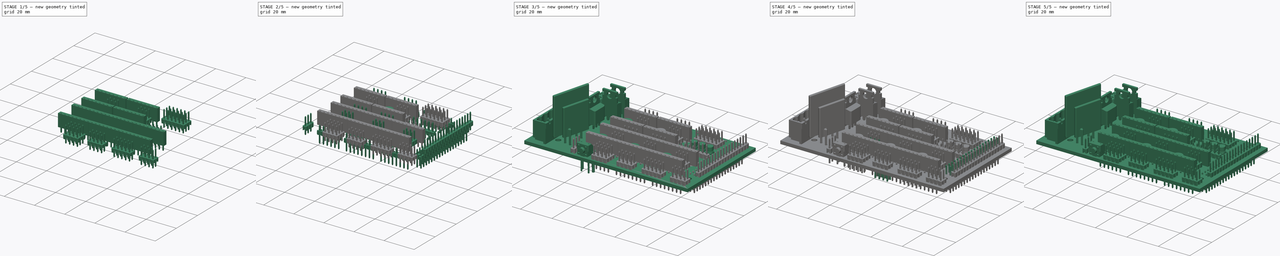
[diagram: build sequence overview — one tinted view per stage of 5, left to right]
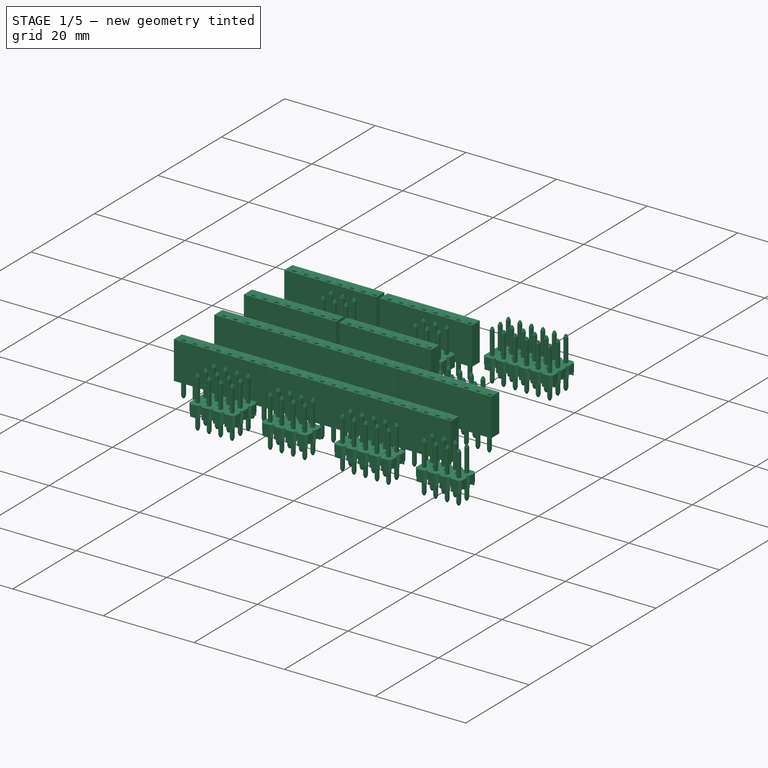
[diagram: stage 1 of 5 — iso view after this stage's code; geometry added in this stage tinted green]
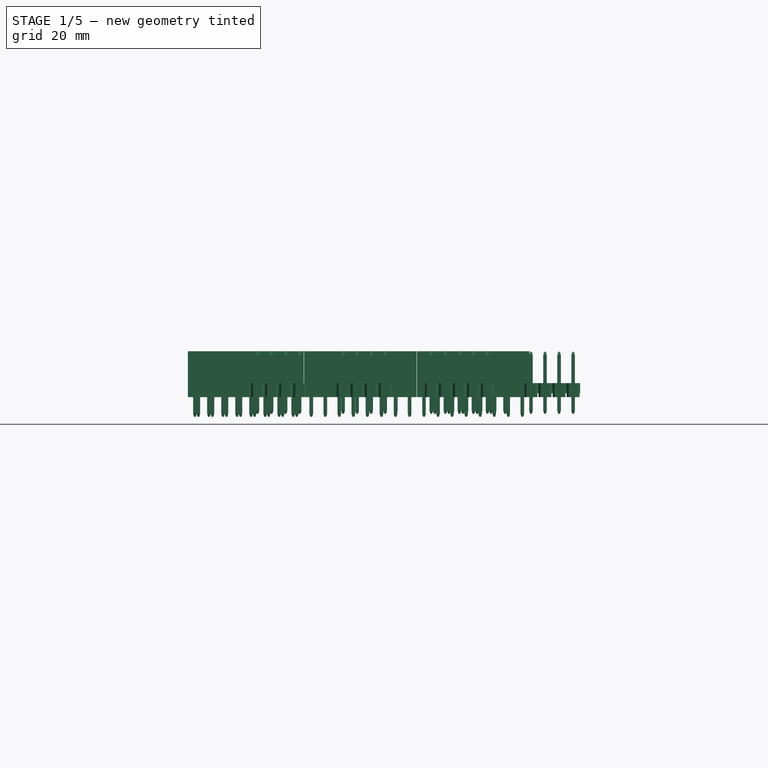
[diagram: stage 1 of 5 — front view after this stage's code; geometry added in this stage tinted green]
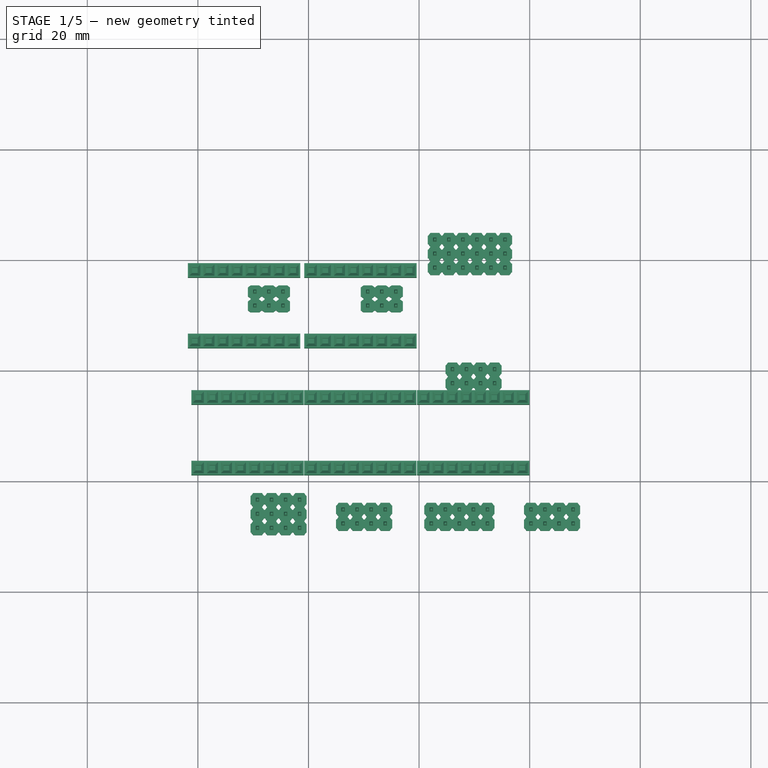
[diagram: stage 1 of 5 — top view after this stage's code; geometry added in this stage tinted green]
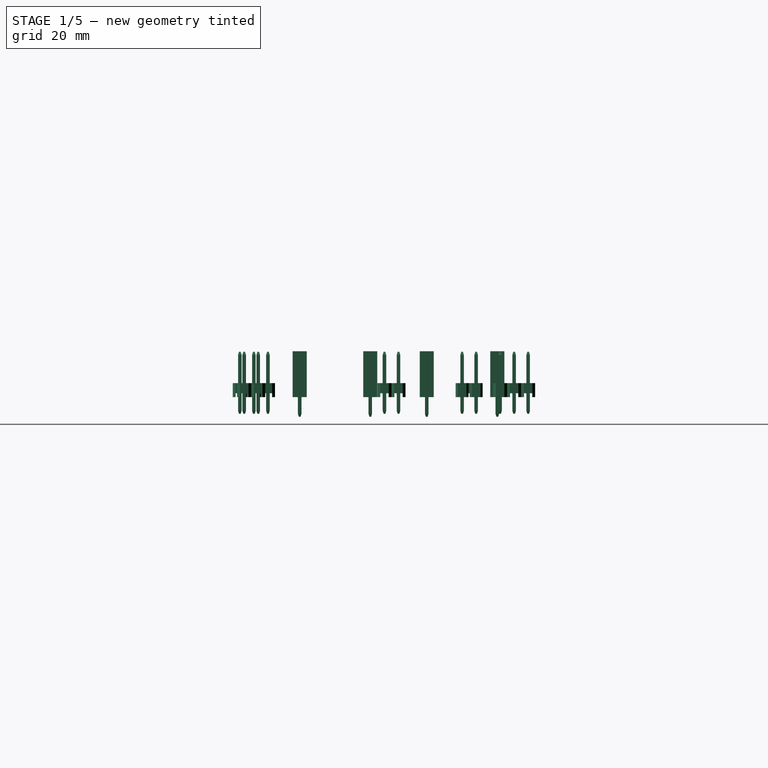
[diagram: stage 1 of 5 — right view after this stage's code; geometry added in this stage tinted green]
FCSTD DOCUMENT  (FreeCAD 0.14R3702 (Git))
Label: ramps-1.4
License: CC-BY 3.0
LicenseURL: http://creativecommons.org/licenses/by/3.0/
objects: Part::Compound×51, Part::Cylinder×17, Part::Feature×17, Part::FeaturePython×14, Sketcher::SketchObject×6, PartDesign::Pocket×5, Part::MultiFuse×2, PartDesign::Pad×1, Part::Cut×1, App::DocumentObjectGroup×1
note: 120 computed .brp shape members not serialized (recipe doc carries the construction recipe); baked Part::Feature solids carry a one-line shape summary decoded from their .brp

FEATURE [Part::Compound] Compound032  label="2x3-male-pin-header003"
  Placement = pos=(-7.15619,12.9354,0) rot=(0,0,1;1.5708rad)
FEATURE [Part::Compound] Compound033  label="2x3-male-pin-header004"
  Placement = pos=(13.2632,12.9354,0) rot=(0,0,1;1.5708rad)
FEATURE [Part::Compound] Compound034  label="2x4-male-pin-header"
  Placement = pos=(6.25643,-27.7376,0) rot=(0,0,1;0rad)
FEATURE [Part::Compound] Compound035  label="2x4-male-pin-header001"
  Placement = pos=(26.0377,-2.3729,0) rot=(0,0,1;0rad)
FEATURE [Part::Compound] Compound036  label="2x4-male-pin-header002"
  Placement = pos=(40.2354,-27.7375,0) rot=(0,0,1;0rad)
FEATURE [Part::Compound] Compound037  label="2x5-male-pin-header"
  Placement = pos=(22.2091,-27.7375,0) rot=(0,0,1;0rad)
FEATURE [Part::Compound] Compound038  label="3x4-male-pin-header"
  Placement = pos=(-9.21766,-28.5253,0) rot=(0,0,1;0rad)
FEATURE [Part::Compound] Compound039  label="3x6-male-pin-header"
  Placement = pos=(22.8472,18.535,0) rot=(0,0,1;0rad)
FEATURE [Part::Compound] Compound040  label="1x8-female-pin-header"
  Placement = pos=(0.513,5.274,0) rot=(0,0,1;0rad)
FEATURE [Part::Compound] Compound041  label="1x8-female-pin-header001"
  Placement = pos=(0.49,-17.7,0) rot=(0,0,1;0rad)
FEATURE [Part::Compound] Compound042  label="1x8-female-pin-header002"
  Placement = pos=(20.89,-17.7,0) rot=(0,0,1;0rad)
FEATURE [Part::Compound] Compound043  label="1x8-female-pin-header003"
  Placement = pos=(-19.91,-4.94,0) rot=(0,0,1;0rad)
FEATURE [Part::Compound] Compound044  label="1x8-female-pin-header004"
  Placement = pos=(0.49,-4.94,0) rot=(0,0,1;0rad)
FEATURE [Part::Compound] Compound045  label="1x8-female-pin-header005"
  Placement = pos=(20.89,-4.94,0) rot=(0,0,1;0rad)
FEATURE [Part::Compound] Compound046  label="1x8-female-pin-header006"
  Placement = pos=(-20.544,5.274,0) rot=(0,0,1;0rad)
FEATURE [Part::Compound] Compound047  label="1x8-female-pin-header007"
  Placement = pos=(-19.91,-17.7,0) rot=(0,0,1;0rad)
FEATURE [Part::Compound] Compound048  label="1x8-female-pin-header008"
  Placement = pos=(-20.544,18.034,0) rot=(0,0,1;0rad)
FEATURE [Part::Compound] Compound049  label="1x8-female-pin-header009"
  Placement = pos=(0.513,18.034,0) rot=(0,0,1;0rad)
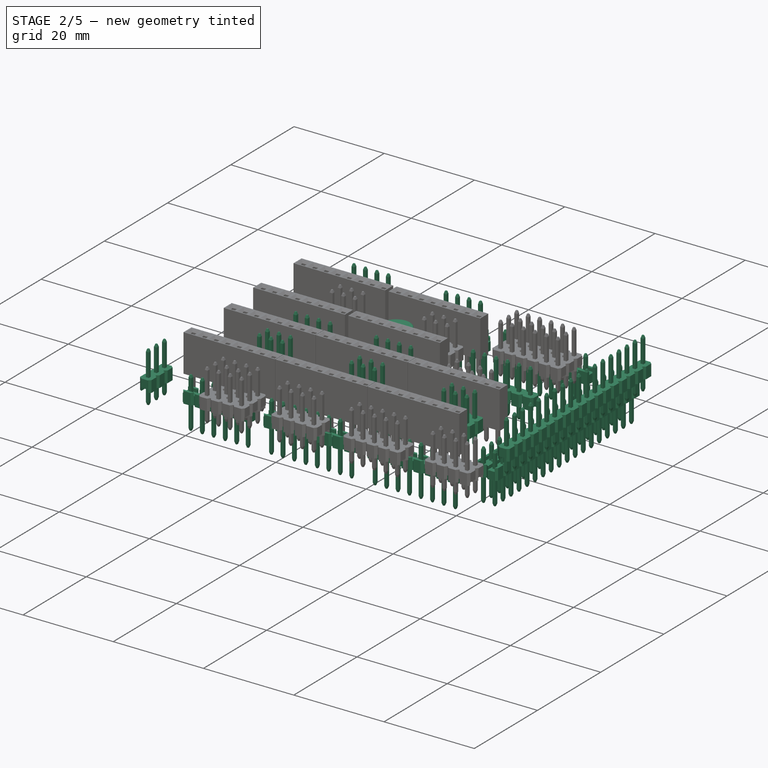
[diagram: stage 2 of 5 — iso view after this stage's code; geometry added in this stage tinted green]
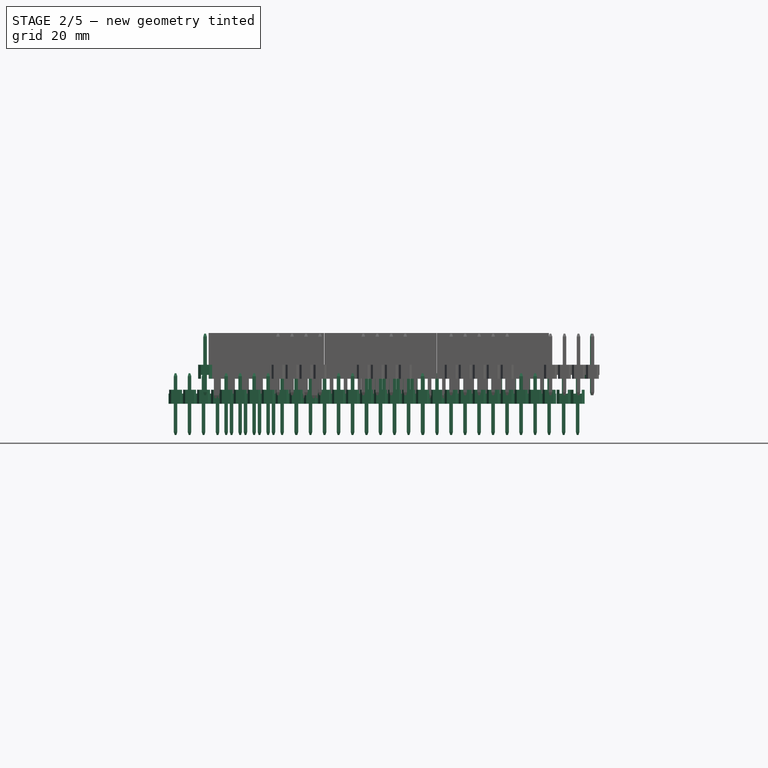
[diagram: stage 2 of 5 — front view after this stage's code; geometry added in this stage tinted green]
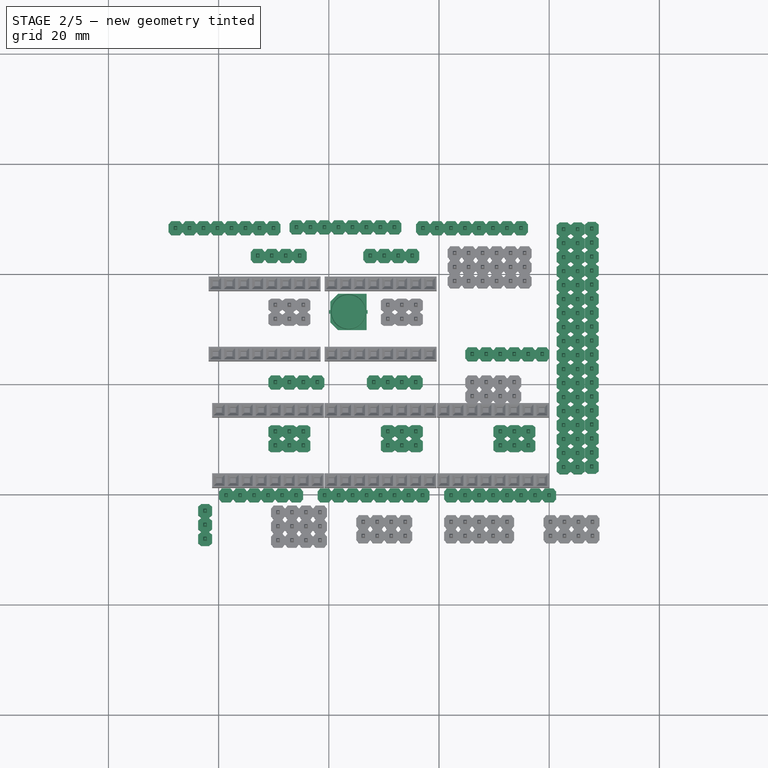
[diagram: stage 2 of 5 — top view after this stage's code; geometry added in this stage tinted green]
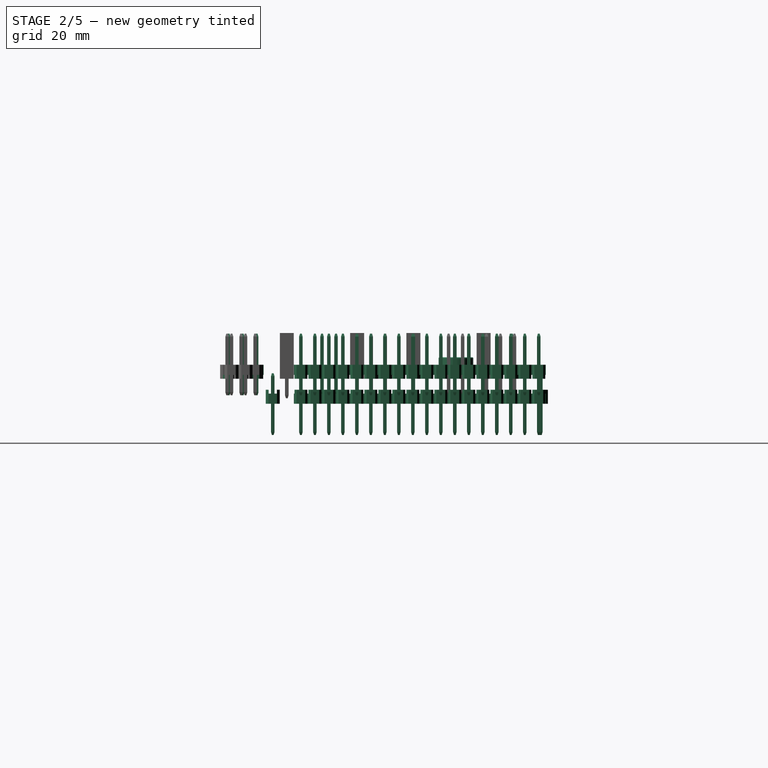
[diagram: stage 2 of 5 — right view after this stage's code; geometry added in this stage tinted green]
FEATURE [Part::Compound] Compound014  label="capsmd6_3x3-006"
  Placement = pos=(3.5575,12.9976,0.64) rot=(0,0,1;1.5708rad)
FEATURE [Part::Compound] Compound015  label="1x6-male-pin-header"
  Placement = pos=(-18.6297,-20.2499,-2) rot=(1,0,0;3.14159rad)
FEATURE [Part::Compound] Compound016  label="1x8-male-pin-header"
  Placement = pos=(-0.7627,-20.2499,-2) rot=(1,0,0;3.14159rad)
FEATURE [Part::Compound] Compound017  label="1x8-male-pin-header001"
  Placement = pos=(22.2091,-20.2499,-2) rot=(1,0,0;3.14159rad)
FEATURE [Part::Compound] Compound018  label="1x8-male-pin-header002"
  Placement = pos=(-27.818,28.246,-2) rot=(1,0,0;3.14159rad)
FEATURE [Part::Compound] Compound019  label="1x8-male-pin-header003"
  Placement = pos=(-5.867,28.406,-2) rot=(1,0,0;3.14159rad)
FEATURE [Part::Compound] Compound020  label="1x8-male-pin-header004"
  Placement = pos=(17.1048,28.246,-2) rot=(1,0,0;3.14159rad)
FEATURE [Part::Compound] Compound021  label="2x18-male-pin-header"
  Placement = pos=(42.6284,-15.145,-2) rot=(0.707107,0.707107,0;3.14159rad)
FEATURE [Part::Compound] Compound022  label="1x3-male-pin-header"
  Placement = pos=(-22.4583,-28.2517,0) rot=(0,0,1;1.5708rad)
FEATURE [Part::Compound] Compound023  label="1x6-male-pin-header001"
  Placement = pos=(26.0377,5.27434,0) rot=(0,0,1;0rad)
FEATURE [Part::Compound] Compound024  label="1x4-male-pin-header"
  Placement = pos=(-9.69619,0.1693,0) rot=(0,0,1;0rad)
FEATURE [Part::Compound] Compound025  label="1x4-male-pin-header001"
  Placement = pos=(8.17071,0.169402,0) rot=(0,0,1;0rad)
FEATURE [Part::Compound] Compound026  label="1x4-male-pin-header002"
  Placement = pos=(-12.8868,23.1413,0) rot=(0,0,1;0rad)
FEATURE [Part::Compound] Compound027  label="1x4-male-pin-header003"
  Placement = pos=(7.53261,23.1413,0) rot=(0,0,1;0rad)
FEATURE [Part::Compound] Compound028  label="1x18-male-pin-header"
  Placement = pos=(47.7284,-15.145,0) rot=(0,0,1;1.5708rad)
FEATURE [Part::Compound] Compound029  label="2x3-male-pin-header"
  Placement = pos=(-7.15619,-10.0464,0) rot=(0,0,1;1.5708rad)
FEATURE [Part::Compound] Compound030  label="2x3-male-pin-header001"
  Placement = pos=(13.2632,-10.0364,0) rot=(0,0,1;1.5708rad)
FEATURE [Part::Compound] Compound031  label="2x3-male-pin-header002"
  Placement = pos=(33.6874,-10.0364,0) rot=(0,0,1;1.5708rad)
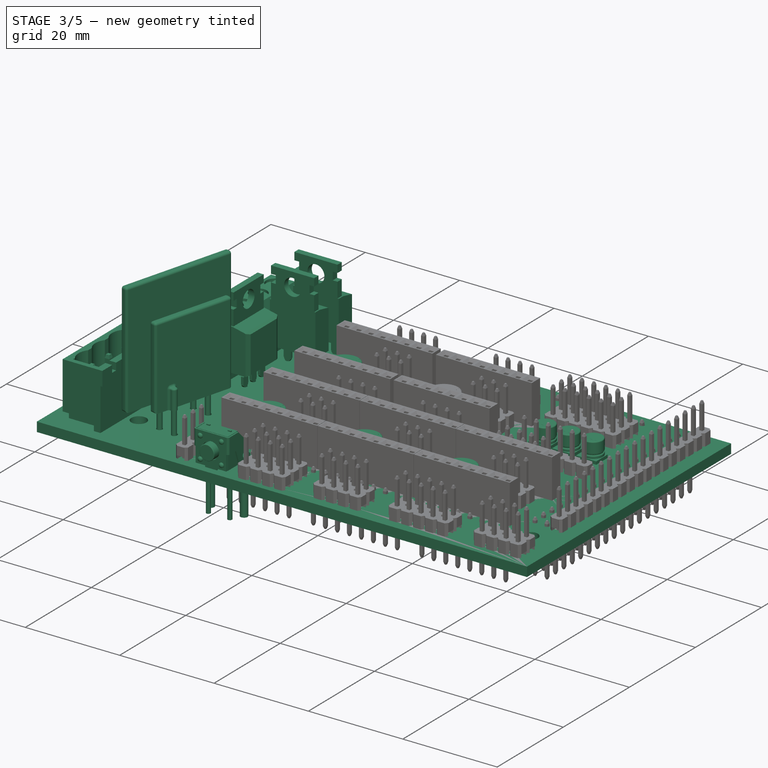
[diagram: stage 3 of 5 — iso view after this stage's code; geometry added in this stage tinted green]
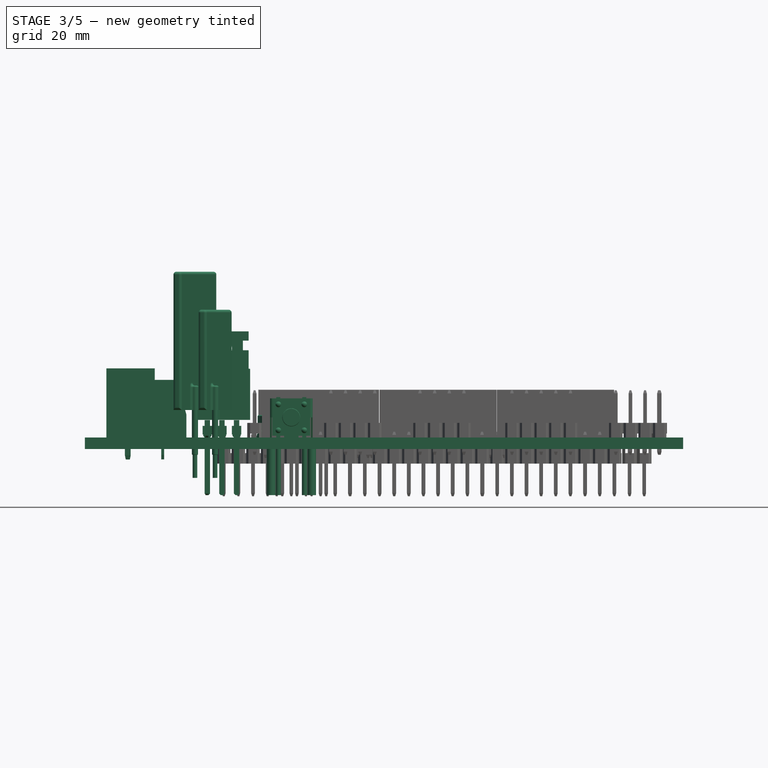
[diagram: stage 3 of 5 — front view after this stage's code; geometry added in this stage tinted green]
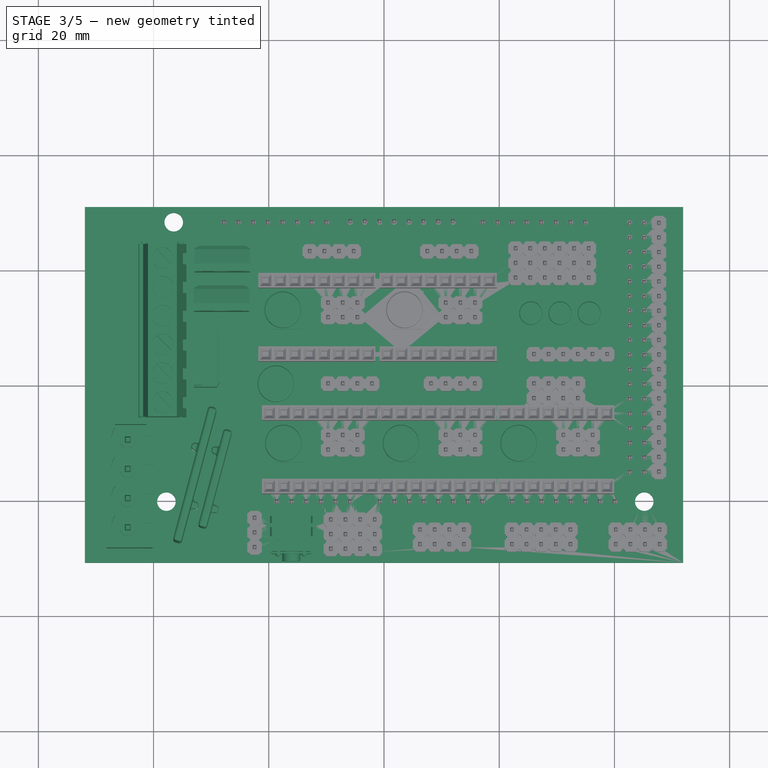
[diagram: stage 3 of 5 — top view after this stage's code; geometry added in this stage tinted green]
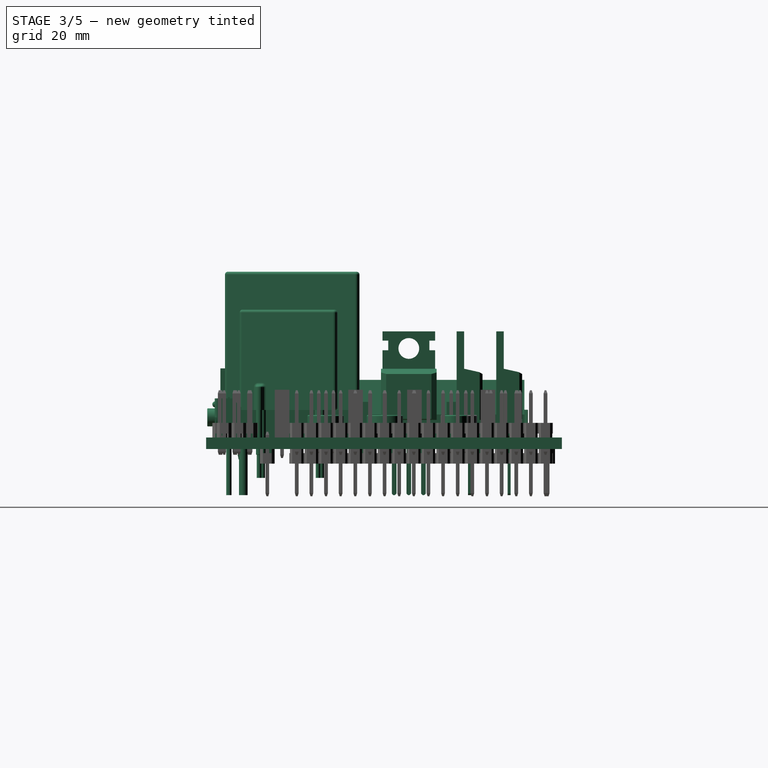
[diagram: stage 3 of 5 — right view after this stage's code; geometry added in this stage tinted green]
FEATURE [Part::Cylinder] Cylinder012002  label="Cylinder014"
  Angle = 360
  Height = 10
  Placement = pos=(-19.5996,-24.4231,-10) rot=(0,0,1;0rad)
  Radius = 0.75
FEATURE [Part::Cylinder] Cylinder012003  label="Cylinder015"
  Angle = 360
  Height = 10
  Placement = pos=(-18.3489,-26.9244,-10) rot=(0,0,1;0rad)
  Radius = 0.45
FEATURE [Part::Cylinder] Cylinder012004  label="Cylinder016"
  Angle = 360
  Height = 10
  Placement = pos=(-13.8056,-26.9244,-10) rot=(0,0,1;0rad)
  Radius = 0.45
FEATURE [Part::Cylinder] Cylinder012005  label="Cylinder017"
  Angle = 360
  Height = 10
  Placement = pos=(-12.5549,-24.4231,-10) rot=(0,0,1;0rad)
  Radius = 0.75
FEATURE [App::DocumentObjectGroup] Group001  label="ramps-pcb-src"
  Group = -> [Pad,Pocket,Pocket001,Pocket002,Pocket003,Pocket004,Array,Array001,Array002,Array003,Array003001,Array003002,Array003003,Array003004,Array003005,Array003006,Array003007,Array003008,Array003008001,Array003008002,Array003008003,Array003008004,Array003008004001,Array003008004001001,Array003008004001001001,Array003008004001001001001,Array003008001001,Array003008004001001001002,+8 more]
FEATURE [Part::Feature] Cut001  label="ramps-1.4-pcb"
  shape: bbox 103.9 x 61.76 x 2 mm, 335 faces (baked)
FEATURE [Part::Compound] Compound  label="terminal-block-male-straight-4-ways"
  Placement = pos=(-43.998,-17.207,0) rot=(0,0,-1;1.5708rad)
FEATURE [Part::Compound] Compound001  label="pcb-terminal-block-female-1x6"
  Placement = pos=(-38.4593,9.365,0) rot=(0,0,1;3.14159rad)
FEATURE [Part::Compound] Compound002  label="Mosfet-P55NF06L"
  Placement = pos=(-33.004,4.305,3.0595) rot=(0,0,1;1.5708rad)
FEATURE [Part::Compound] Compound003  label="Mosfet-P55NF06L001"
  Placement = pos=(-28.0607,19.4769,3.0595) rot=(0,0,1;3.14159rad)
FEATURE [Part::Compound] Compound004  label="Mosfet-P55NF06L002"
  Placement = pos=(-28.19,12.6,3.0595) rot=(0,0,1;3.14159rad)
FEATURE [Part::Feature] Pad001  label="fuse-MF-R1100-final"
  Placement = pos=(-32.826,-15.9347,-3) rot=(0,0,1;1.30969rad)
  shape: bbox 7.645 x 23.57 x 35.78 mm, 54 faces (baked)
FEATURE [Part::Feature] Pad002  label="fuse-MR-R500-final"
  Placement = pos=(-29.318,-16.5686,-3) rot=(0,0,1;1.30969rad)
  shape: bbox 5.941 x 17.2 x 29.18 mm, 56 faces (baked)
FEATURE [Part::Compound] Compound005  label="pushbutton-right-angle"
  Placement = pos=(-16.0943,-24.4244,0) rot=(0,0,1;0rad)
FEATURE [Part::Compound] Compound006  label="capsmd4x3-1"
  Placement = pos=(35.6275,12.4224,0.64) rot=(0,0,1;0rad)
FEATURE [Part::Compound] Compound007  label="capsmd4x3-002"
  Placement = pos=(30.5575,12.4224,0.64) rot=(0,0,1;0rad)
FEATURE [Part::Compound] Compound008  label="capsmd4x3-003"
  Placement = pos=(25.4875,12.4224,0.64) rot=(0,0,1;0rad)
FEATURE [Part::Compound] Compound009  label="capsmd6_3x3-1"
  Placement = pos=(-17.4705,-10.1425,0.64) rot=(0,0,1;1.5708rad)
FEATURE [Part::Compound] Compound010  label="capsmd6_3x3-002"
  Placement = pos=(-17.5775,12.9976,0.64) rot=(0,0,1;1.5708rad)
FEATURE [Part::Compound] Compound011  label="capsmd6_3x3-003"
  Placement = pos=(2.9505,-10.1425,0.64) rot=(0,0,1;1.5708rad)
FEATURE [Part::Compound] Compound012  label="capsmd6_3x3-004"
  Placement = pos=(23.3715,-10.1425,0.64) rot=(0,0,1;1.5708rad)
FEATURE [Part::Compound] Compound013  label="capsmd6_3x3-005"
  Placement = pos=(-18.7775,0.15555,0.64) rot=(0,0,1;1.5708rad)
FEATURE [Part::Compound] Compound050  label="ramps-1.4"
  Links = -> [Cut001,Compound,Compound001,Compound002,Compound003,Compound004,Pad001,Pad002,Compound005,Compound006,Compound007,Compound008,Compound009,Compound010,Compound011,Compound012,Compound013,Compound014,Compound015,Compound016,Compound017,Compound018,Compound019,Compound020,Compound021,Compound022,Compound023,Compound024,Compound025,Compound026,Compound027,Compound028,Compound029,Compound030,+19 more]
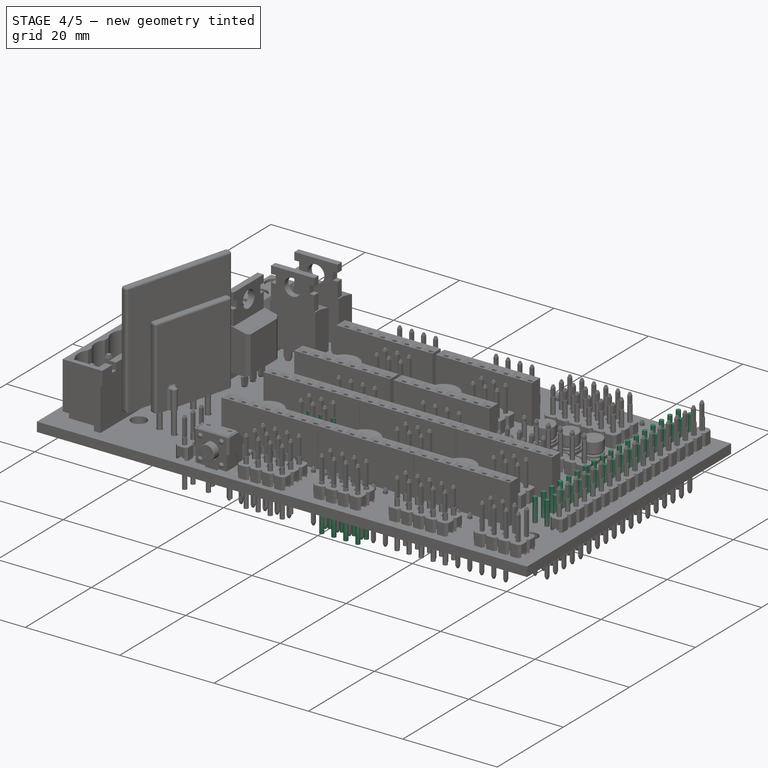
[diagram: stage 4 of 5 — iso view after this stage's code; geometry added in this stage tinted green]
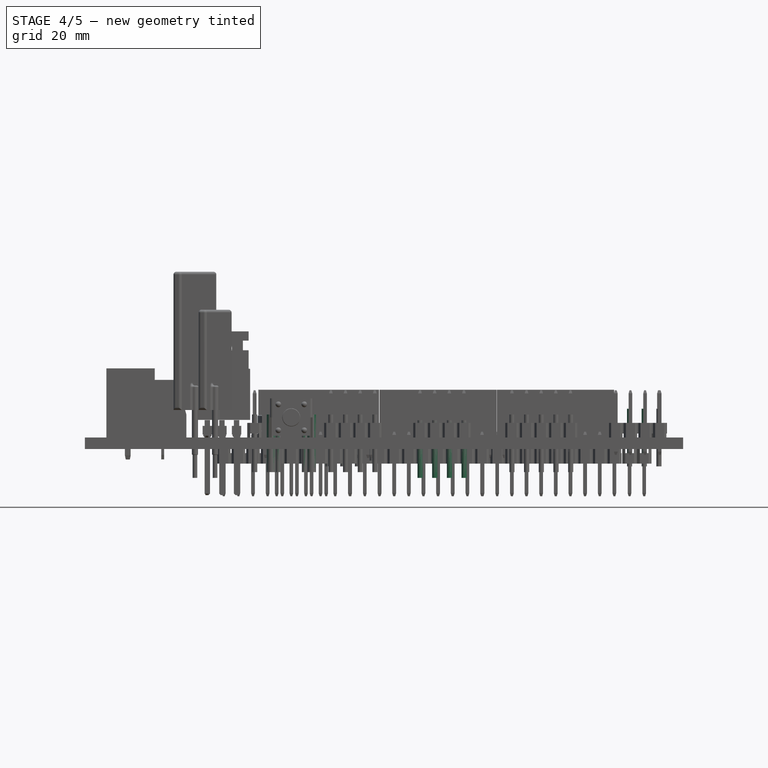
[diagram: stage 4 of 5 — front view after this stage's code; geometry added in this stage tinted green]
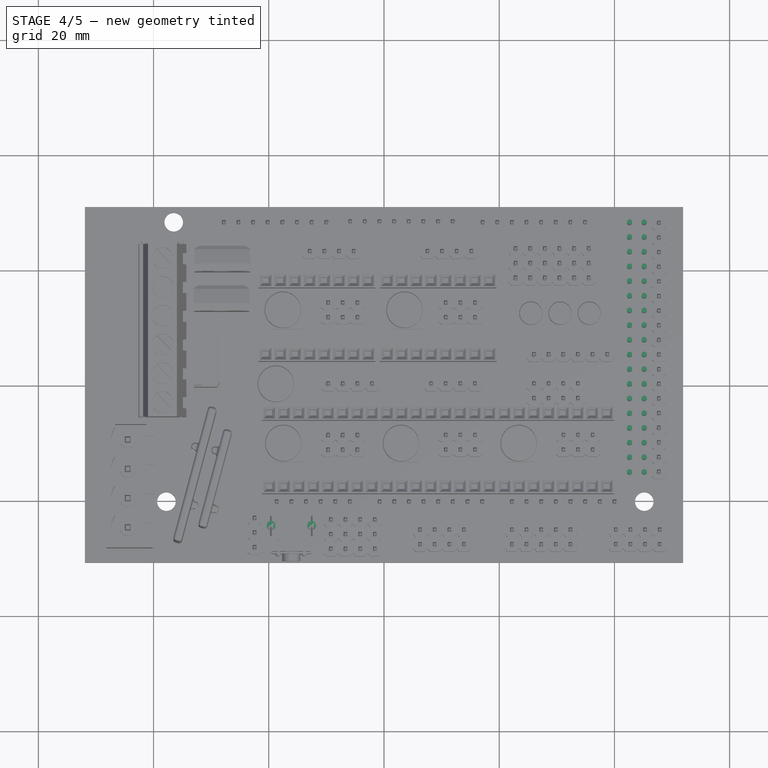
[diagram: stage 4 of 5 — top view after this stage's code; geometry added in this stage tinted green]
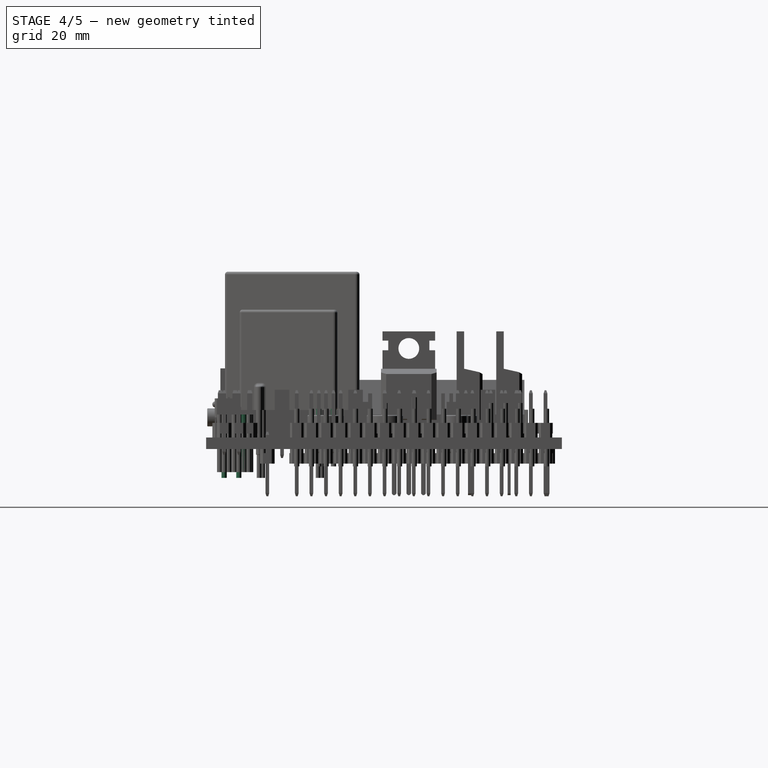
[diagram: stage 4 of 5 — right view after this stage's code; geometry added in this stage tinted green]
FEATURE [Part::Cylinder] Cylinder005
  Angle = 360
  Height = 10
  Placement = pos=(-22.4583,-28.2517,-6) rot=(0,0,1;0rad)
  Radius = 0.45
FEATURE [Part::FeaturePython] Array003006  label="1x3-male-pins"  # Draft array (typed FeaturePython)
  Angle = 360
  ArrayType = 0
  Axis = (0,0,1)
  Base = -> Cylinder005
  Center = (0,0,0)
  IntervalX = (1,0,0)
  IntervalY = (0,2.55,0)
  IntervalZ = (0,0,1)
  NumberPolar = 1
  NumberX = 1
  NumberY = 3
  NumberZ = 1
FEATURE [Part::Cylinder] Cylinder006
  Angle = 360
  Height = 10
  Placement = pos=(-9.21766,-28.5453,-6) rot=(0,0,1;0rad)
  Radius = 0.45
FEATURE [Part::FeaturePython] Array003007  label="3x4-male-pins"  # Draft array (typed FeaturePython)
  Angle = 360
  ArrayType = 0
  Axis = (0,0,1)
  Base = -> Cylinder006
  Center = (0,0,0)
  IntervalX = (2.55,0,0)
  IntervalY = (0,2.55,0)
  IntervalZ = (0,0,1)
  NumberPolar = 1
  NumberX = 4
  NumberY = 3
  NumberZ = 1
FEATURE [Part::Cylinder] Cylinder007
  Angle = 360
  Height = 10
  Placement = pos=(6.25643,-27.7476,-7) rot=(0,0,1;0rad)
  Radius = 0.45
FEATURE [Part::FeaturePython] Array003008  label="2x4-male-pins-1"  # Draft array (typed FeaturePython)
  Angle = 360
  ArrayType = 0
  Axis = (0,0,1)
  Base = -> Cylinder007
  Center = (0,0,0)
  IntervalX = (2.55,0,0)
  IntervalY = (0,2.55,0)
  IntervalZ = (0,0,1)
  NumberPolar = 1
  NumberX = 4
  NumberY = 2
  NumberZ = 1
FEATURE [Part::Feature] Array003008001  label="2x4-male-pins-002"
  Placement = pos=(33.979,6.1607e-05,0) rot=(0,0,1;0rad)
  shape: bbox 8.55 x 3.45 x 10 mm, 24 faces, 8 solids (baked)
FEATURE [Part::Cylinder] Cylinder008
  Angle = 360
  Height = 10
  Placement = pos=(22.2091,-25.1951,-10) rot=(0,0,1;0rad)
  Radius = 0.45
FEATURE [Part::FeaturePython] Array003008002  label="2x5-male-pins"  # Draft array (typed FeaturePython)
  Angle = 360
  ArrayType = 0
  Axis = (0,0,1)
  Base = -> Cylinder008
  Center = (0,0,0)
  IntervalX = (2.55,0,0)
  IntervalY = (0,2.55,0)
  IntervalZ = (0,0,1)
  NumberPolar = 1
  NumberX = 5
  NumberY = 2
  NumberZ = 1
  Placement = pos=(1.9e-11,-2.55242,4) rot=(0,0,1;0rad)
FEATURE [Part::Cylinder] Cylinder009
  Angle = 360
  Height = 10
  Placement = pos=(42.6284,-15.145,-5) rot=(0,0,1;0rad)
  Radius = 0.45
FEATURE [Part::FeaturePython] Array003008003  label="3x18-male-pins"  # Draft array (typed FeaturePython)
  Angle = 360
  ArrayType = 0
  Axis = (0,0,1)
  Base = -> Cylinder009
  Center = (0,0,0)
  IntervalX = (2.55,0,0)
  IntervalY = (0,2.55,0)
  IntervalZ = (0,0,1)
  NumberPolar = 1
  NumberX = 3
  NumberY = 18
  NumberZ = 1
FEATURE [Part::Cylinder] Cylinder010
  Angle = 360
  Height = 10
  Placement = pos=(-9.69619,-11.3164,-5) rot=(0,0,1;0rad)
  Radius = 0.45
FEATURE [Part::FeaturePython] Array003008004  label="2x3-male-pins-1"  # Draft array (typed FeaturePython)
  Angle = 360
  ArrayType = 0
  Axis = (0,0,1)
  Base = -> Cylinder010
  Center = (0,0,0)
  IntervalX = (2.55,0,0)
  IntervalY = (0,2.55,0)
  IntervalZ = (0,0,1)
  NumberPolar = 1
  NumberX = 3
  NumberY = 2
  NumberZ = 1
FEATURE [Part::Feature] Array003008004001  label="2x3-male-pins-002"
  Placement = pos=(20.4194,1.43086e-05,0) rot=(0,0,1;0rad)
  shape: bbox 6 x 3.45 x 10 mm, 18 faces, 6 solids (baked)
FEATURE [Part::Feature] Array003008004001001  label="2x3-male-pins-003"
  Placement = pos=(-1.0239e-06,22.9718,0) rot=(0,0,1;0rad)
  shape: bbox 6 x 3.45 x 10 mm, 18 faces, 6 solids (baked)
FEATURE [Part::Feature] Array003008004001001001  label="2x3-male-pins-004"
  Placement = pos=(20.4194,22.9718,0) rot=(0,0,1;0rad)
  shape: bbox 6 x 3.45 x 10 mm, 18 faces, 6 solids (baked)
FEATURE [Part::Feature] Array003008004001001001001  label="2x3-male-pins-005"
  Placement = pos=(40.8436,1.43086e-05,0) rot=(0,0,1;0rad)
  shape: bbox 6 x 3.45 x 10 mm, 18 faces, 6 solids (baked)
FEATURE [Part::Feature] Array003008001001  label="2x4-male-pins-003"
  Placement = pos=(19.7813,25.3647,2) rot=(0,0,1;0rad)
  shape: bbox 8.55 x 3.45 x 10 mm, 24 faces, 8 solids (baked)
FEATURE [Part::Cylinder] Cylinder011
  Angle = 360
  Height = 10
  Placement = pos=(-9.69619,0.1693,-4) rot=(0,0,1;0rad)
  Radius = 0.45
FEATURE [Part::FeaturePython] Array003008004001001001002  label="1x4-male-pins001"  # Draft array (typed FeaturePython)
  Angle = 360
  ArrayType = 0
  Axis = (0,0,1)
  Base = -> Cylinder011
  Center = (0,0,0)
  IntervalX = (2.55,0,0)
  IntervalY = (0,1,0)
  IntervalZ = (0,0,1)
  NumberPolar = 1
  NumberX = 4
  NumberY = 1
  NumberZ = 1
FEATURE [Part::Feature] Array003008004001001001002001  label="1x4-male-pins002"
  Placement = pos=(17.8669,0.000102212,1) rot=(0,0,1;0rad)
  shape: bbox 8.55 x 0.9 x 10 mm, 12 faces, 4 solids (baked)
FEATURE [Part::Feature] Array003008004001001001002001001  label="1x4-male-pins003"
  Placement = pos=(-3.19063,22.972,0) rot=(0,0,1;0rad)
  shape: bbox 8.55 x 0.9 x 10 mm, 12 faces, 4 solids (baked)
FEATURE [Part::Feature] Array003008004001001001002001001001  label="1x4-male-pins004"
  Placement = pos=(17.2288,22.972,0) rot=(0,0,1;0rad)
  shape: bbox 8.55 x 0.9 x 10 mm, 12 faces, 4 solids (baked)
FEATURE [Part::Cylinder] Cylinder012
  Angle = 360
  Height = 10
  Placement = pos=(26.0377,5.27434,-3) rot=(0,0,1;0rad)
  Radius = 0.45
FEATURE [Part::Feature] Cylinder012001  label="Cylinder013"
  Placement = pos=(22.8472,18.515,-4) rot=(0,0,1;0rad)
  shape: bbox 0.9 x 0.9 x 10 mm, 3 faces (baked)
FEATURE [Part::FeaturePython] Array003008004001001001002001001002  label="1x6-male-pins"  # Draft array (typed FeaturePython)
  Angle = 360
  ArrayType = 0
  Axis = (0,0,1)
  Base = -> Cylinder012
  Center = (0,0,0)
  IntervalX = (2.55,0,0)
  IntervalY = (0,1,0)
  IntervalZ = (0,0,1)
  NumberPolar = 1
  NumberX = 6
  NumberY = 1
  NumberZ = 1
FEATURE [Part::FeaturePython] Array003008004001001001002001001003  label="3x6-male-pins"  # Draft array (typed FeaturePython)
  Angle = 360
  ArrayType = 0
  Axis = (0,0,1)
  Base = -> Cylinder012001
  Center = (0,0,0)
  IntervalX = (2.55,0,0)
  IntervalY = (0,2.55,0)
  IntervalZ = (0,0,1)
  NumberPolar = 1
  NumberX = 6
  NumberY = 3
  NumberZ = 1
FEATURE [Part::MultiFuse] Fusion  label="push-button-pads"
  Placement = pos=(0,0,4) rot=(0,0,1;0rad)
  Shapes = -> [Cylinder012002,Cylinder012003,Cylinder012005,Cylinder012004]
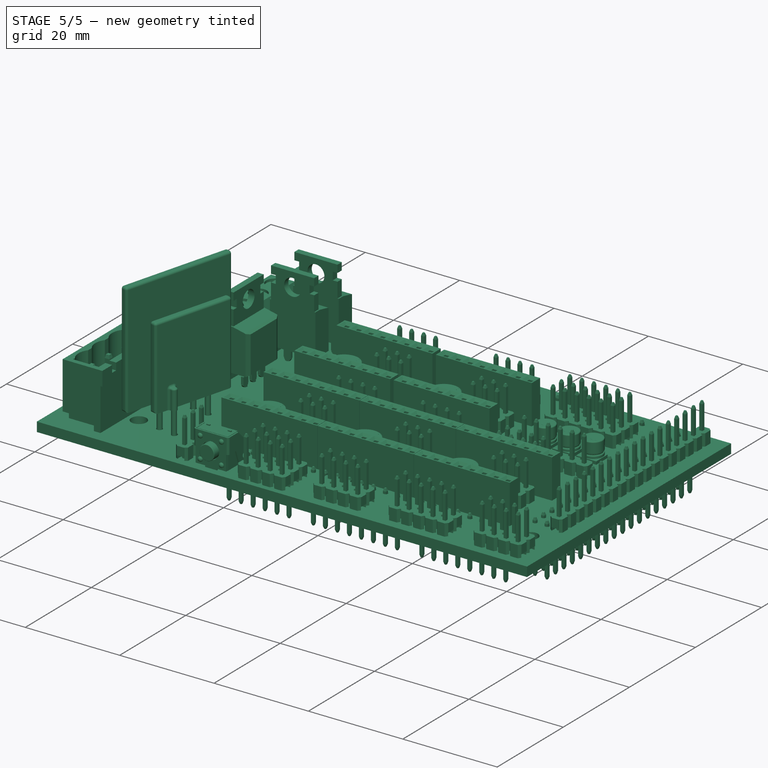
[diagram: stage 5 of 5 — iso view after this stage's code; geometry added in this stage tinted green]
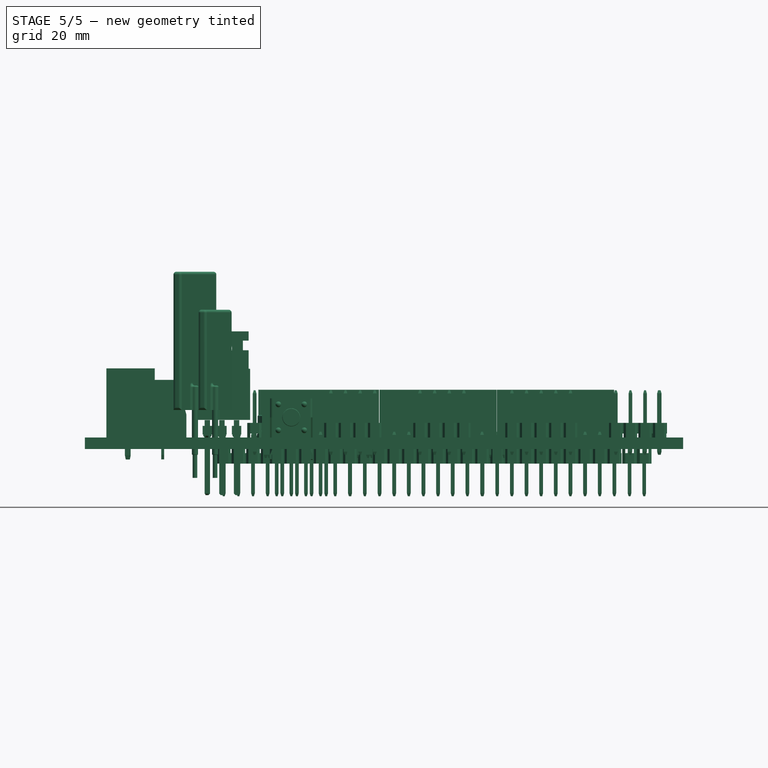
[diagram: stage 5 of 5 — front view after this stage's code; geometry added in this stage tinted green]
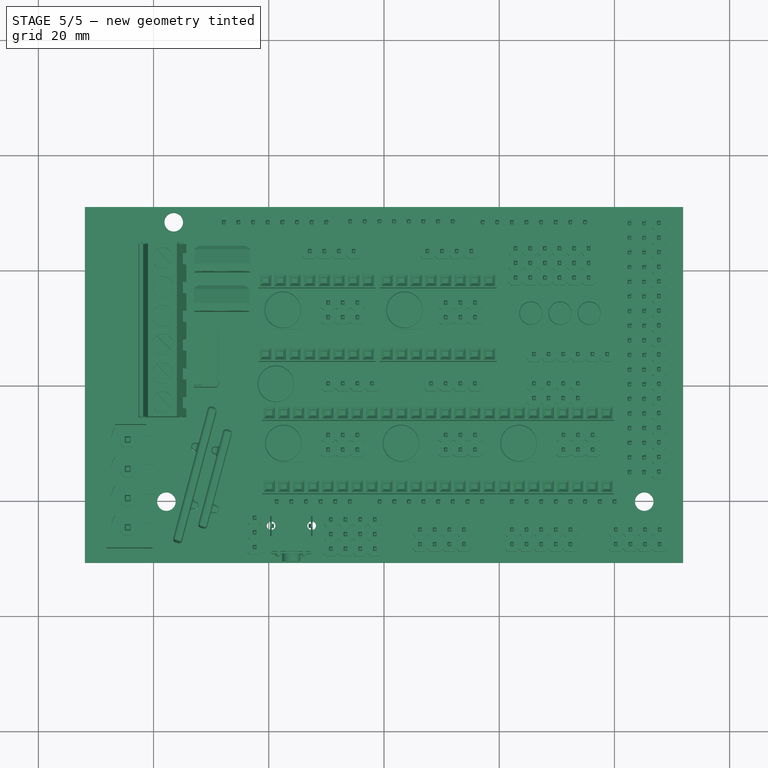
[diagram: stage 5 of 5 — top view after this stage's code; geometry added in this stage tinted green]
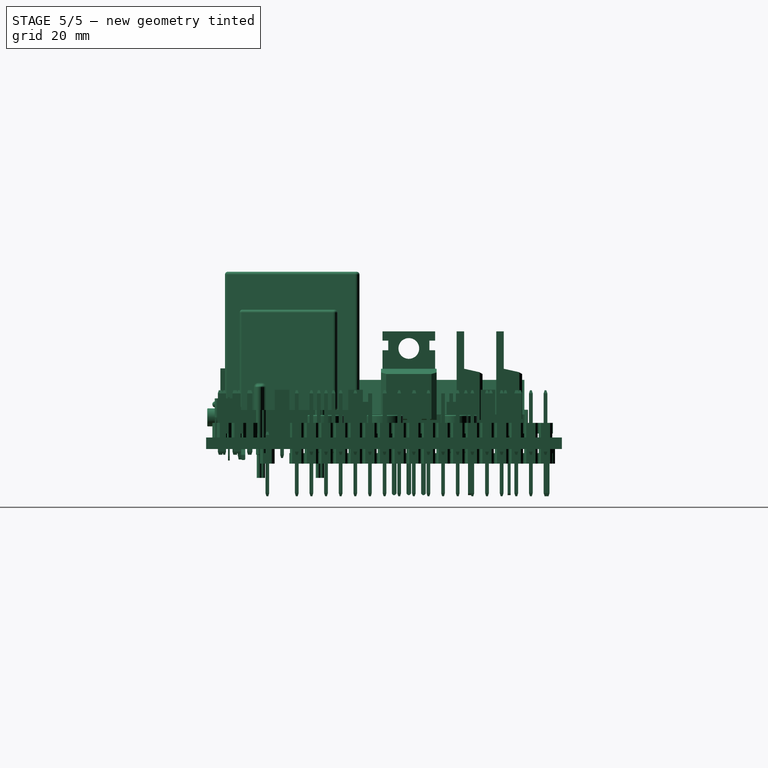
[diagram: stage 5 of 5 — right view after this stage's code; geometry added in this stage tinted green]
FEATURE [Sketcher::SketchObject] Sketch  label="ramps_pcb_main_sketch"
  Placement = pos=(0,0,-2) rot=(0,0,1;0rad)
  sketch-geometry (4):
    g0: LineSegment StartX=-51.9275 StartY=30.8824 StartZ=0 EndX=51.9275 EndY=30.8824 EndZ=0
    g1: LineSegment StartX=51.9275 StartY=30.8824 StartZ=0 EndX=51.9275 EndY=-30.8824 EndZ=0
    g2: LineSegment StartX=51.9275 StartY=-30.8824 StartZ=0 EndX=-51.9275 EndY=-30.8824 EndZ=0
    g3: LineSegment StartX=-51.9275 StartY=-30.8824 StartZ=0 EndX=-51.9275 EndY=30.8824 EndZ=0
  constraints (11):
    c: Coincident(g0,g1)
    c: Coincident(g1,g2)
    c: Coincident(g2,g3)
    c: Coincident(g3,g0)
    c: Horizontal(g0)
    c: Horizontal(g2)
    c: Vertical(g1)
    c: Vertical(g3)
    c: Symmetric(g0,g1,g-1)
    c: DistanceX(g0) = 103.855
    c: DistanceY(g1) = -61.7649
FEATURE [PartDesign::Pad] Pad  label="ramps_pcb_main"
  Length = 2
  Length2 = 100
  Placement = pos=(0,0,-2) rot=(0,0,1;0rad)
  Sketch = -> Sketch
  Type = 0
FEATURE [Sketcher::SketchObject] Sketch001  label="ramps-drills-sketch"
  Support = -> Pad [Face6]
  sketch-geometry (4):
    g0: Circle CenterX=-36.5 CenterY=28.25 CenterZ=0 NormalX=0 NormalY=0 NormalZ=1 Radius=1.61
    g1: Circle CenterX=-37.77 CenterY=-20.25 CenterZ=0 NormalX=0 NormalY=0 NormalZ=1 Radius=1.61
    g2: Circle CenterX=45.18 CenterY=-20.25 CenterZ=0 NormalX=0 NormalY=0 NormalZ=1 Radius=1.61
    g3: LineSegment [constr] StartX=-37.77 StartY=-20.25 StartZ=0 EndX=45.18 EndY=-20.25 EndZ=0
  constraints (11):
    c: Radius(g0) = 1.61
    c: DistanceX(g-1,g0) = -36.5
    c: DistanceY(g-1,g0) = 28.25
    c: Equal(g0,g2)
    c: Equal(g1,g2)
    c: DistanceX(g-1,g1) = -37.77
    c: DistanceY(g-1,g1) = -20.25
    c: Horizontal(g3)
    c: Coincident(g3,g1)
    c: Coincident(g3,g2)
    c: DistanceX(g-1,g2) = 45.18
FEATURE [PartDesign::Pocket] Pocket  label="ramps-drills"
  Length = 5
  Placement = pos=(0,0,-2) rot=(0,0,1;0rad)
  Sketch = -> Sketch001
  Type = 1
FEATURE [Sketcher::SketchObject] Sketch002  label="power-connector-pads-sketch"
  Support = -> Pocket [Face5]
  sketch-geometry (7):
    g0: Circle CenterX=-44.473 CenterY=-24.877 CenterZ=0 NormalX=0 NormalY=0 NormalZ=1 Radius=0.7
    g1: Circle CenterX=-44.473 CenterY=-9.562 CenterZ=0 NormalX=0 NormalY=0 NormalZ=1 Radius=0.7
    g2: Circle CenterX=-44.473 CenterY=-14.667 CenterZ=0 NormalX=0 NormalY=0 NormalZ=1 Radius=0.7
    g3: Circle CenterX=-44.473 CenterY=-19.772 CenterZ=0 NormalX=0 NormalY=0 NormalZ=1 Radius=0.7
    g4: LineSegment [constr] StartX=-44.473 StartY=-9.562 StartZ=0 EndX=-44.473 EndY=-14.667 EndZ=0
    g5: LineSegment [constr] StartX=-44.473 StartY=-14.667 StartZ=0 EndX=-44.473 EndY=-19.772 EndZ=0
    g6: LineSegment [constr] StartX=-44.473 StartY=-19.772 StartZ=0 EndX=-44.473 EndY=-24.877 EndZ=0
  constraints (18):
    c: Radius(g1) = 0.7
    c: Equal(g1,g3)
    c: Equal(g3,g2)
    c: Equal(g2,g0)
    c: DistanceX(g-1,g1) = -44.473
    c: DistanceY(g-1,g1) = -9.562
    c: Vertical(g4)
    c: Coincident(g4,g1)
    c: Coincident(g4,g2)
    c: DistanceY(g4) = -5.105
    c: Vertical(g5)
    c: Coincident(g5,g2)
    c: Coincident(g5,g3)
    c: Equal(g4,g5)
    c: Coincident(g3,g6)
    c: Vertical(g6)
    c: Coincident(g6,g0)
    c: Equal(g5,g6)
FEATURE [PartDesign::Pocket] Pocket001  label="power-connector-pads"
  Length = 5
  Placement = pos=(0,0,-2) rot=(0,0,1;0rad)
  Sketch = -> Sketch002
  Type = 1
FEATURE [Sketcher::SketchObject] Sketch003  label="terminal-pads-sketch"
  Support = -> Pocket001 [Face5]
  sketch-geometry (11):
    g0: Circle CenterX=-38.41 CenterY=21.865 CenterZ=0 NormalX=0 NormalY=0 NormalZ=1 Radius=0.6
    g1: Circle CenterX=-38.41 CenterY=16.76 CenterZ=0 NormalX=0 NormalY=0 NormalZ=1 Radius=0.6
    g2: Circle CenterX=-38.41 CenterY=11.655 CenterZ=0 NormalX=0 NormalY=0 NormalZ=1 Radius=0.6
    g3: Circle CenterX=-38.41 CenterY=6.55 CenterZ=0 NormalX=0 NormalY=0 NormalZ=1 Radius=0.6
    g4: Circle CenterX=-38.41 CenterY=1.445 CenterZ=0 NormalX=0 NormalY=0 NormalZ=1 Radius=0.6
    g5: Circle CenterX=-38.41 CenterY=-3.66 CenterZ=0 NormalX=0 NormalY=0 NormalZ=1 Radius=0.6
    g6: LineSegment [constr] StartX=-38.41 StartY=-3.66 StartZ=0 EndX=-38.41 EndY=1.445 EndZ=0
    g7: LineSegment [constr] StartX=-38.41 StartY=6.55 StartZ=0 EndX=-38.41 EndY=1.445 EndZ=0
    g8: LineSegment [constr] StartX=-38.41 StartY=11.655 StartZ=0 EndX=-38.41 EndY=6.55 EndZ=0
    g9: LineSegment [constr] StartX=-38.41 StartY=16.76 StartZ=0 EndX=-38.41 EndY=11.655 EndZ=0
    g10: LineSegment [constr] StartX=-38.41 StartY=21.865 StartZ=0 EndX=-38.41 EndY=16.76 EndZ=0
  constraints (28):
    c: Radius(g5) = 0.6
    c: Equal(g5,g4)
    c: Equal(g4,g3)
    c: Equal(g3,g2)
    c: Equal(g2,g1)
    c: Equal(g1,g0)
    c: DistanceX(g-1,g5) = -38.41
    c: DistanceY(g-1,g5) = -3.66
    c: Vertical(g6)
    c: Coincident(g5,g6)
    c: Coincident(g4,g6)
    c: DistanceY(g6) = 5.105
    c: Vertical(g7)
    c: Coincident(g7,g4)
    c: Coincident(g3,g7)
    c: Vertical(g8)
    c: Equal(g6,g7)
    c: Coincident(g8,g3)
    c: Coincident(g2,g8)
    c: Equal(g7,g8)
    c: Vertical(g9)
    c: Coincident(g9,g2)
    c: Coincident(g1,g9)
    c: Vertical(g10)
    c: Coincident(g10,g1)
    c: Coincident(g0,g10)
    c: Equal(g10,g8)
    c: Equal(g9,g8)
FEATURE [PartDesign::Pocket] Pocket002  label="terminal-pads"
  Length = 5
  Placement = pos=(0,0,-2) rot=(0,0,1;0rad)
  Sketch = -> Sketch003
  Type = 1
FEATURE [Sketcher::SketchObject] Sketch004  label="fuse-pads-sketch"
  Support = -> Pocket002 [Face5]
  sketch-geometry (6):
    g0: Circle CenterX=-32.826 CenterY=-21.048 CenterZ=0 NormalX=0 NormalY=0 NormalZ=1 Radius=0.6
    g1: Circle CenterX=-29.318 CenterY=-21.526 CenterZ=0 NormalX=0 NormalY=0 NormalZ=1 Radius=0.6
    g2: Circle CenterX=-29.318 CenterY=-11.316 CenterZ=0 NormalX=0 NormalY=0 NormalZ=1 Radius=0.6
    g3: Circle CenterX=-32.826 CenterY=-10.838 CenterZ=0 NormalX=0 NormalY=0 NormalZ=1 Radius=0.6
    g4: LineSegment [constr] StartX=-32.826 StartY=-21.048 StartZ=0 EndX=-32.826 EndY=-10.838 EndZ=0
    g5: LineSegment [constr] StartX=-29.318 StartY=-11.316 StartZ=0 EndX=-29.318 EndY=-21.526 EndZ=0
  constraints (16):
    c: Radius(g0) = 0.6
    c: Equal(g0,g1)
    c: Equal(g1,g2)
    c: Equal(g2,g3)
    c: DistanceX(g-1,g0) = -32.826
    c: DistanceY(g-1,g0) = -21.048
    c: Vertical(g4)
    c: Coincident(g4,g0)
    c: Coincident(g4,g3)
    c: Vertical(g5)
    c: Coincident(g5,g2)
    c: Coincident(g1,g5)
    c: DistanceY(g4) = 10.21
    c: DistanceX(g-1,g1) = -29.318
    c: DistanceY(g-1,g1) = -21.526
    c: DistanceY(g5) = -10.21
FEATURE [PartDesign::Pocket] Pocket003  label="fuse-pads"
  Length = 5
  Placement = pos=(0,0,-2) rot=(0,0,1;0rad)
  Sketch = -> Sketch004
  Type = 1
FEATURE [Sketcher::SketchObject] Sketch005  label="mosfet-pads-sketch"
  Support = -> Pocket003 [Face5]
  sketch-geometry (15):
    g0: Circle CenterX=-30.754 CenterY=1.765 CenterZ=0 NormalX=0 NormalY=0 NormalZ=1 Radius=0.5
    g1: Circle CenterX=-30.754 CenterY=4.305 CenterZ=0 NormalX=0 NormalY=0 NormalZ=1 Radius=0.5
    g2: Circle CenterX=-30.754 CenterY=6.845 CenterZ=0 NormalX=0 NormalY=0 NormalZ=1 Radius=0.5
    g3: Circle CenterX=-30.73 CenterY=14.85 CenterZ=0 NormalX=0 NormalY=0 NormalZ=1 Radius=0.5
    g4: Circle CenterX=-28.19 CenterY=14.85 CenterZ=0 NormalX=0 NormalY=0 NormalZ=1 Radius=0.5
    g5: Circle CenterX=-25.65 CenterY=14.85 CenterZ=0 NormalX=0 NormalY=0 NormalZ=1 Radius=0.5
    g6: Circle CenterX=-30.73 CenterY=21.87 CenterZ=0 NormalX=0 NormalY=0 NormalZ=1 Radius=0.5
    g7: Circle CenterX=-28.19 CenterY=21.87 CenterZ=0 NormalX=0 NormalY=0 NormalZ=1 Radius=0.5
    g8: Circle CenterX=-25.65 CenterY=21.87 CenterZ=0 NormalX=0 NormalY=0 NormalZ=1 Radius=0.5
    g9: LineSegment [constr] StartX=-30.754 StartY=4.305 StartZ=0 EndX=-30.754 EndY=1.765 EndZ=0
    g10: LineSegment [constr] StartX=-30.754 StartY=6.845 StartZ=0 EndX=-30.754 EndY=4.305 EndZ=0
    g11: LineSegment [constr] StartX=-30.73 StartY=14.85 StartZ=0 EndX=-28.19 EndY=14.85 EndZ=0
    g12: LineSegment [constr] StartX=-28.19 StartY=14.85 StartZ=0 EndX=-25.65 EndY=14.85 EndZ=0
    g13: LineSegment [constr] StartX=-30.73 StartY=21.87 StartZ=0 EndX=-28.19 EndY=21.87 EndZ=0
    g14: LineSegment [constr] StartX=-28.19 StartY=21.87 StartZ=0 EndX=-25.65 EndY=21.87 EndZ=0
  constraints (39):
    c: Radius(g0) = 0.5
    c: Equal(g0,g1)
    c: Equal(g1,g2)
    c: Equal(g2,g3)
    c: Equal(g3,g4)
    c: Equal(g4,g5)
    c: Equal(g5,g8)
    c: Equal(g8,g7)
    c: Equal(g7,g6)
    c: Coincident(g0,g9)
    c: Vertical(g9)
    c: Coincident(g1,g9)
    c: Vertical(g10)
    c: Coincident(g10,g1)
    c: Coincident(g2,g10)
    c: Equal(g9,g10)
    c: Horizontal(g11)
    c: Horizontal(g12)
    c: Coincident(g3,g11)
    c: Coincident(g4,g11)
    c: Coincident(g12,g4)
    c: Coincident(g5,g12)
    c: Equal(g11,g12)
    c: Horizontal(g13)
    c: Coincident(g13,g6)
    c: Coincident(g7,g13)
    c: Horizontal(g14)
    c: Coincident(g14,g7)
    c: Coincident(g14,g8)
    c: DistanceY(g9) = -2.54
    c: DistanceX(g11) = 2.54
    c: DistanceX(g-1,g0) = -30.754
    c: DistanceY(g-1,g0) = 1.765
    c: DistanceX(g13) = 2.54
    c: Equal(g13,g14)
    c: DistanceX(g-1,g5) = -25.65
    c: DistanceY(g-1,g5) = 14.85
    c: DistanceX(g-1,g8) = -25.65
    c: DistanceY(g-1,g8) = 21.87
FEATURE [PartDesign::Pocket] Pocket004  label="mosfet-pads"
  Length = 5
  Placement = pos=(0,0,-2) rot=(0,0,1;0rad)
  Sketch = -> Sketch005
  Type = 1
FEATURE [Part::Cylinder] Cylinder
  Angle = 360
  Height = 10
  Placement = pos=(-19.91,-17.7,-6) rot=(0,0,1;0rad)
  Radius = 0.45
FEATURE [Part::FeaturePython] Array  label="pololus-xyz-pads-cylinders"  # Draft array (typed FeaturePython)
  Angle = 360
  ArrayType = 0
  Axis = (0,0,1)
  Base = -> Cylinder
  Center = (0,0,0)
  IntervalX = (2.55,0,0)
  IntervalY = (0,12.76,0)
  IntervalZ = (0,0,1)
  NumberPolar = 1
  NumberX = 24
  NumberY = 2
  NumberZ = 1
FEATURE [Part::Cylinder] Cylinder001
  Angle = 360
  Height = 10
  Placement = pos=(-20.544,5.274,-6) rot=(0,0,1;0rad)
  Radius = 0.45
FEATURE [Part::FeaturePython] Array001  label="pololu-E0"  # Draft array (typed FeaturePython)
  Angle = 360
  ArrayType = 0
  Axis = (0,0,1)
  Base = -> Cylinder001
  Center = (0,0,0)
  IntervalX = (2.55,0,0)
  IntervalY = (0,12.76,0)
  IntervalZ = (0,0,1)
  NumberPolar = 1
  NumberX = 8
  NumberY = 2
  NumberZ = 1
FEATURE [Part::Cylinder] Cylinder002
  Angle = 360
  Height = 10
  Placement = pos=(0.513,5.274,-6) rot=(0,0,1;0rad)
  Radius = 0.45
FEATURE [Part::FeaturePython] Array002  label="pololu-E1"  # Draft array (typed FeaturePython)
  Angle = 360
  ArrayType = 0
  Axis = (0,0,1)
  Base = -> Cylinder002
  Center = (0,0,0)
  IntervalX = (2.55,0,0)
  IntervalY = (0,12.76,0)
  IntervalZ = (0,0,1)
  NumberPolar = 1
  NumberX = 8
  NumberY = 2
  NumberZ = 1
FEATURE [Part::Cylinder] Cylinder003
  Angle = 360
  Height = 10
  Placement = pos=(-27.818,28.246,-6) rot=(0,0,1;0rad)
  Radius = 0.45
FEATURE [Part::FeaturePython] Array003  label="1x8-male-pins-header-1"  # Draft array (typed FeaturePython)
  Angle = 360
  ArrayType = 0
  Axis = (0,0,1)
  Base = -> Cylinder003
  Center = (0,0,0)
  IntervalX = (2.55,0,0)
  IntervalY = (0,1,0)
  IntervalZ = (0,0,1)
  NumberPolar = 1
  NumberX = 8
  NumberY = 1
  NumberZ = 1
FEATURE [Part::Feature] Array003001  label="1x8-male-pins-header-2"
  Placement = pos=(21.951,0,0) rot=(0,0,1;0rad)
  shape: bbox 18.75 x 0.9 x 10 mm, 24 faces, 8 solids (baked)
FEATURE [Part::Feature] Array003002  label="1x8-male-pins-header-3"
  Placement = pos=(44.9228,0,0) rot=(0,0,1;0rad)
  shape: bbox 18.75 x 0.9 x 10 mm, 24 faces, 8 solids (baked)
FEATURE [Part::Feature] Array003003  label="1x8-male-pins-header-004"
  Placement = pos=(27.0553,-48.4959,0) rot=(0,0,1;0rad)
  shape: bbox 18.75 x 0.9 x 10 mm, 24 faces, 8 solids (baked)
FEATURE [Part::Feature] Array003004  label="1x8-male-pins-header-005"
  Placement = pos=(50.0271,-48.4959,0) rot=(0,0,1;0rad)
  shape: bbox 18.75 x 0.9 x 10 mm, 24 faces, 8 solids (baked)
FEATURE [Part::Cylinder] Cylinder004
  Angle = 360
  Height = 10
  Placement = pos=(-18.6297,-20.2499,-4) rot=(0,0,1;0rad)
  Radius = 0.45
FEATURE [Part::FeaturePython] Array003005  label="1x6-male-pins-header-6"  # Draft array (typed FeaturePython)
  Angle = 360
  ArrayType = 0
  Axis = (0,0,1)
  Base = -> Cylinder004
  Center = (0,0,0)
  IntervalX = (2.55,0,0)
  IntervalY = (0,1,0)
  IntervalZ = (0,0,1)
  NumberPolar = 1
  NumberX = 6
  NumberY = 1
  NumberZ = 1
FEATURE [Part::MultiFuse] Fusion001  label="pads"
  Shapes = -> [Array,Fusion,Array001,Array002,Array003,Array003001,Array003002,Array003003,Array003004,Array003005,Array003006,Array003007,Array003008,Array003008001,Array003008002,Array003008003,Array003008004,Array003008004001,Array003008004001001,Array003008004001001001,Array003008004001001001001,Array003008001001,Array003008004001001001002,Array003008004001001001002001,Array003008004001001001002001001,+3 more]
FEATURE [Part::Cut] Cut  label="pcb-with-pads"
  Base = -> Pocket004
  Tool = -> Fusion001
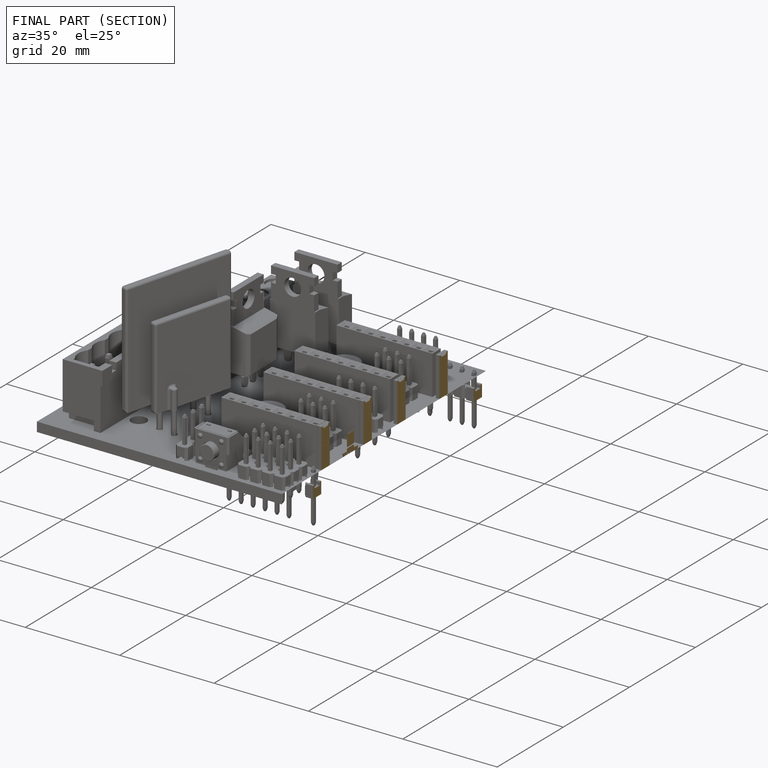
[diagram: finished part — half-section view (interior)]
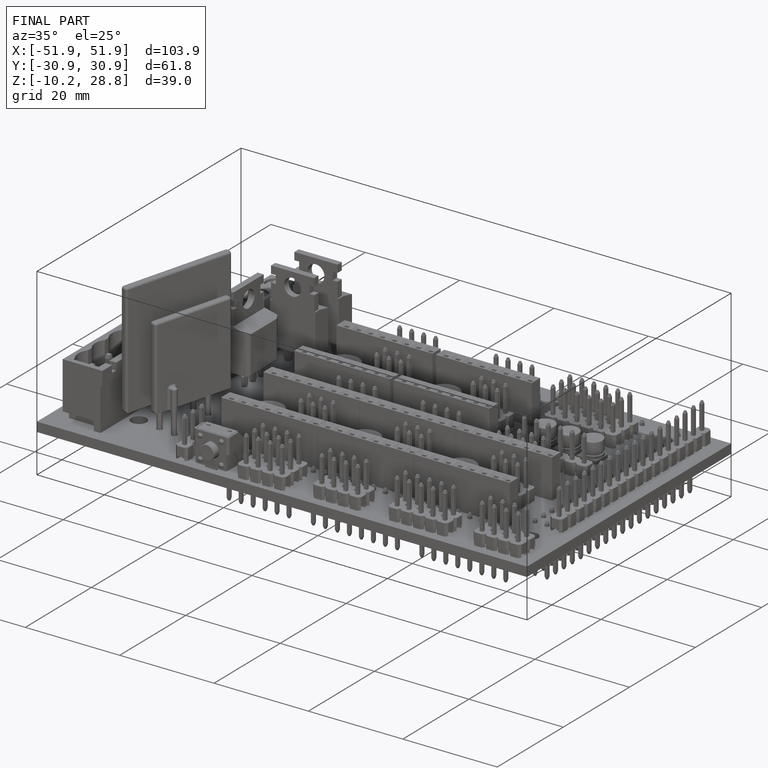
[diagram: finished part — iso view with bounding-box wireframe]
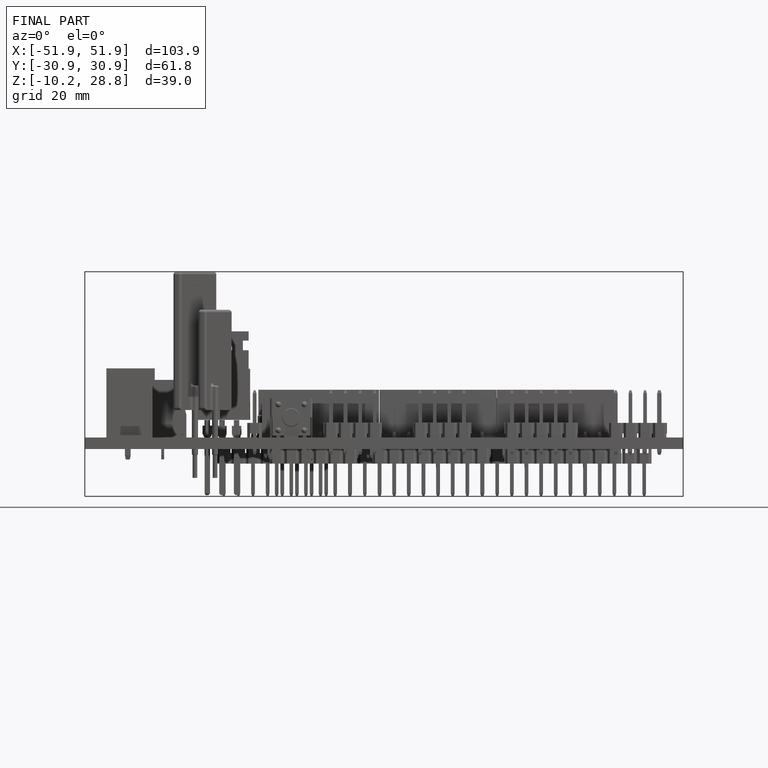
[diagram: finished part — front view with bounding-box wireframe]
